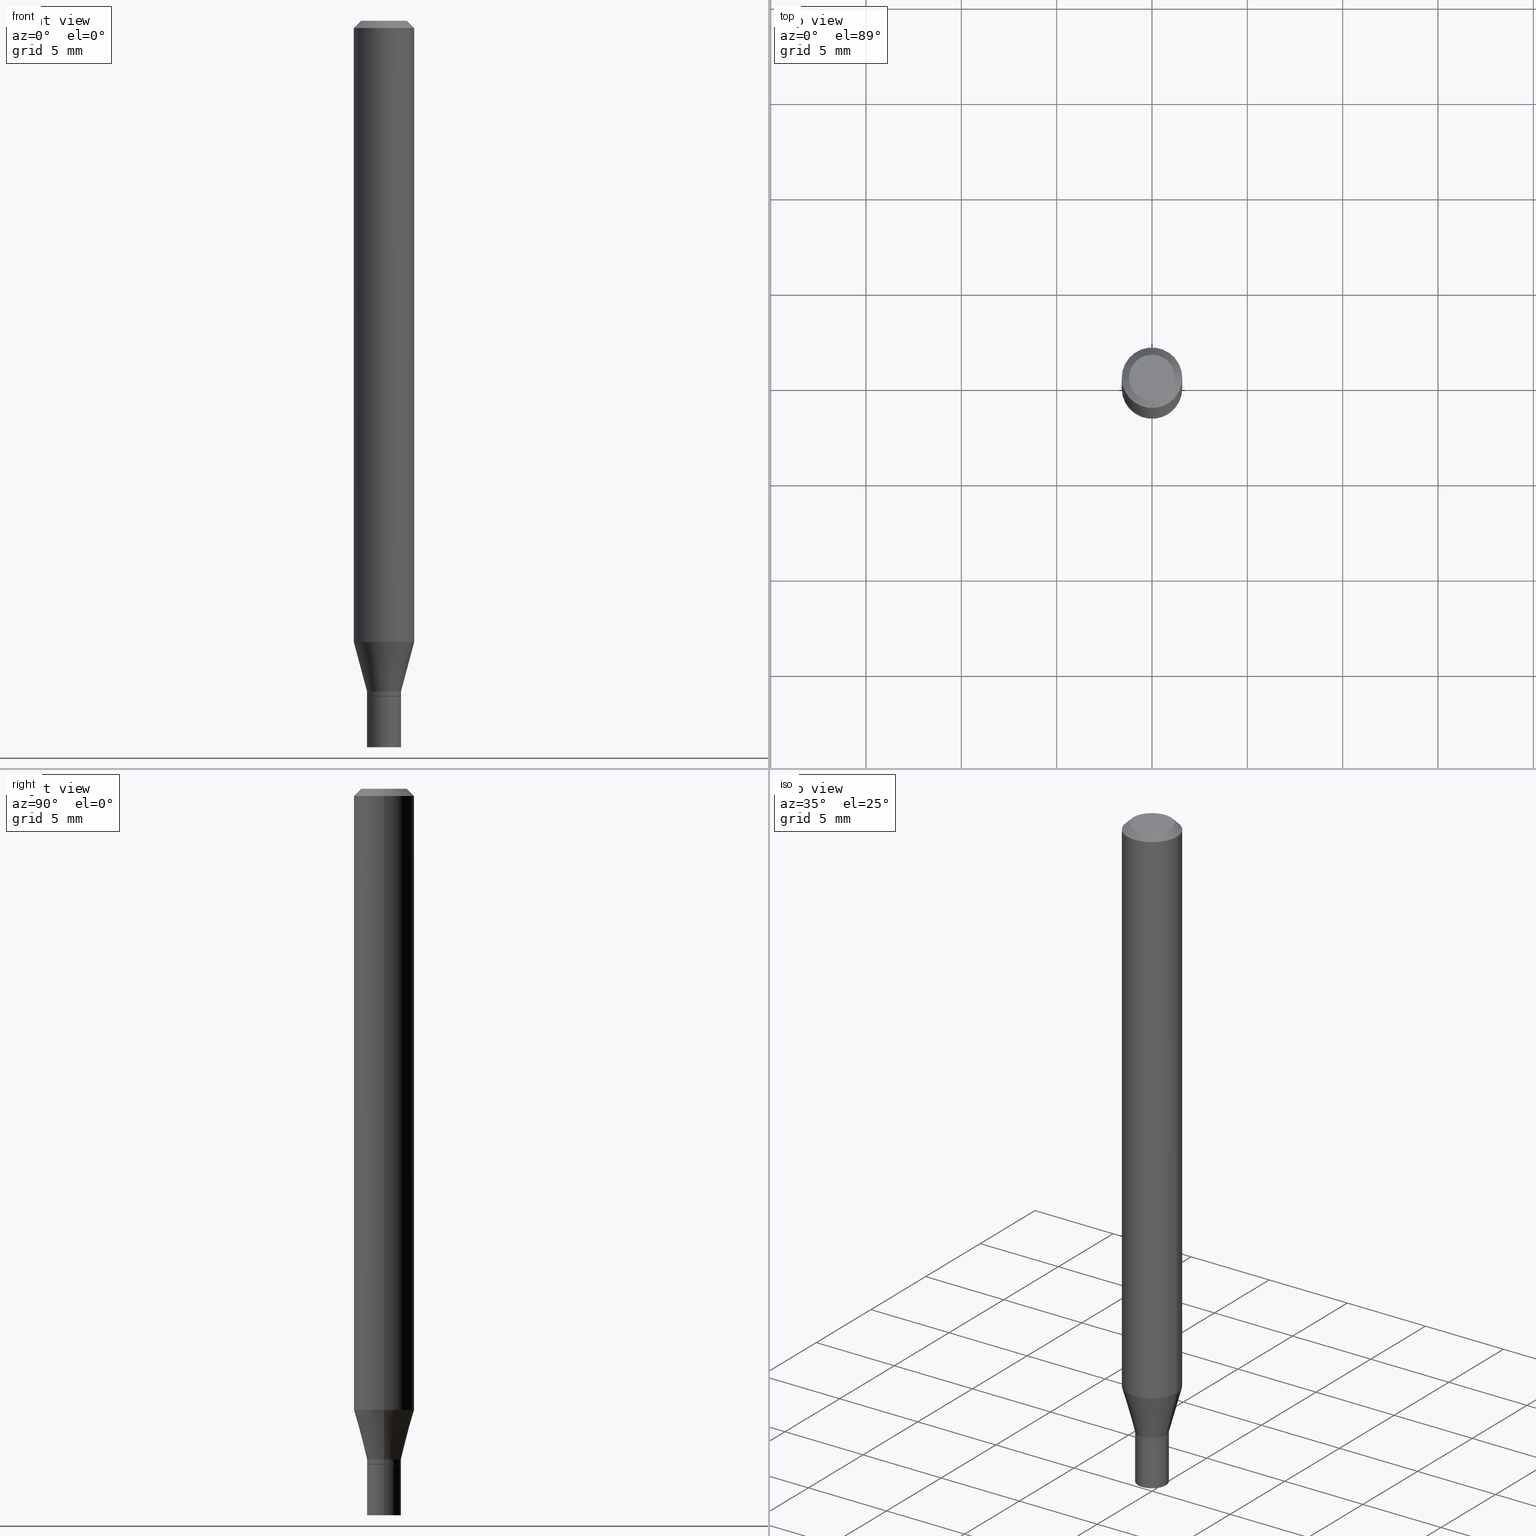
[diagram: canonical four-view strip — front | top / right | iso, engineering-drawing reading convention]
A machine part, canonical four-view strip (front | top / right | iso — engineering-drawing reading convention). The complete STEP part file that produces these views, byte-faithful:
ISO-10303-21;
HEADER;
FILE_DESCRIPTION (( 'STEP AP203' ),
    '1' );
FILE_NAME ('01143.STEP',
    '2024-03-19T23:19:51',
    ( '' ),
    ( '' ),
    'SwSTEP 2.0',
    'SolidWorks 2023',
    '' );
FILE_SCHEMA (( 'CONFIG_CONTROL_DESIGN' ));
ENDSEC;

DATA;
#1 = ORIENTED_EDGE ( 'NONE', *, *, #266, .T. ) ;
#2 = DIRECTION ( 'NONE',  ( 0.2588190451025205729, 1.565188264969627490E-15, 0.9659258262890682012 ) ) ;
#3 = AXIS2_PLACEMENT_3D ( 'NONE', #323, #396, #434 ) ;
#4 = CIRCLE ( 'NONE', #101, 0.03499999999999992700 ) ;
#5 = CARTESIAN_POINT ( 'NONE',  ( 0.06250000000000000000, -4.888073874380388472E-16, -0.01499999999999999944 ) ) ;
#6 = LINE ( 'NONE', #365, #210 ) ;
#7 = VERTEX_POINT ( 'NONE', #95 ) ;
#8 = EDGE_CURVE ( 'NONE', #317, #40, #327, .T. ) ;
#9 = CARTESIAN_POINT ( 'NONE',  ( 0.000000000000000000, 0.000000000000000000, 0.000000000000000000 ) ) ;
#10 = AXIS2_PLACEMENT_3D ( 'NONE', #338, #197, #341 ) ;
#11 = ORIENTED_EDGE ( 'NONE', *, *, #26, .F. ) ;
#12 = LOCAL_TIME ( 19, 19, 51.00000000000000000, #384 ) ;
#13 = CARTESIAN_POINT ( 'NONE',  ( 3.386974296566414366E-29, -4.835701654297756579E-15, -1.385000000000000009 ) ) ;
#14 = CARTESIAN_POINT ( 'NONE',  ( 0.000000000000000000, 0.000000000000000000, 0.000000000000000000 ) ) ;
#15 = DIRECTION ( 'NONE',  ( 2.445468806185136597E-29, -3.491481338843145583E-15, -1.000000000000000000 ) ) ;
#16 = ADVANCED_FACE ( 'NONE', ( #372 ), #31, .T. ) ;
#17 = DIRECTION ( 'NONE',  ( 2.438088387897960049E-29, -3.491481338843145188E-15, -1.000000000000000000 ) ) ;
#18 = ORIENTED_EDGE ( 'NONE', *, *, #143, .T. ) ;
#19 = AXIS2_PLACEMENT_3D ( 'NONE', #263, #376, #233 ) ;
#20 = APPROVAL_PERSON_ORGANIZATION ( #33, #421, #452 ) ;
#21 = DIRECTION ( 'NONE',  ( 0.7071067811865416886, -7.319954787623233957E-15, -0.7071067811865531239 ) ) ;
#22 = DIRECTION ( 'NONE',  ( 1.000000000000000000, -6.982962677686267499E-15, 4.852736867747366768E-29 ) ) ;
#23 = CLOSED_SHELL ( 'NONE', ( #123, #253, #280, #62 ) ) ;
#24 = ORIENTED_EDGE ( 'NONE', *, *, #43, .F. ) ;
#25 = COORDINATED_UNIVERSAL_TIME_OFFSET ( 5, 0, .BEHIND. ) ;
#26 = EDGE_CURVE ( 'NONE', #150, #185, #219, .T. ) ;
#27 = CYLINDRICAL_SURFACE ( 'NONE', #39, 0.03500000000000000333 ) ;
#28 = ORIENTED_EDGE ( 'NONE', *, *, #232, .F. ) ;
#29 = PERSON_AND_ORGANIZATION ( #178, #428 ) ;
#30 = CARTESIAN_POINT ( 'NONE',  ( 0.000000000000000000, 0.000000000000000000, 0.000000000000000000 ) ) ;
#31 = CONICAL_SURFACE ( 'NONE', #10, 0.03499999999999992700, 0.2617993877991492968 ) ;
#32 = ORIENTED_EDGE ( 'NONE', *, *, #437, .F. ) ;
#33 = PERSON_AND_ORGANIZATION ( #178, #428 ) ;
#34 = DIRECTION ( 'NONE',  ( -2.445468806185136597E-29, 3.491481338843145583E-15, 1.000000000000000000 ) ) ;
#35 = DIRECTION ( 'NONE',  ( -2.445468806185136597E-29, 3.491481338843145583E-15, 1.000000000000000000 ) ) ;
#36 = ORIENTED_EDGE ( 'NONE', *, *, #222, .F. ) ;
#37 = APPLICATION_CONTEXT ( 'configuration controlled 3d designs of mechanical parts and assemblies' ) ;
#38 = CARTESIAN_POINT ( 'NONE',  ( -0.03499999999999992700, -4.310144266548890801E-15, -1.385000000000000009 ) ) ;
#39 = AXIS2_PLACEMENT_3D ( 'NONE', #419, #389, #422 ) ;
#40 = VERTEX_POINT ( 'NONE', #60 ) ;
#41 = ORIENTED_EDGE ( 'NONE', *, *, #232, .T. ) ;
#42 = DIRECTION ( 'NONE',  ( -0.2588190451025205729, 5.211531920934544731E-15, 0.9659258262890682012 ) ) ;
#43 = EDGE_CURVE ( 'NONE', #111, #106, #225, .T. ) ;
#44 = FACE_OUTER_BOUND ( 'NONE', #243, .T. ) ;
#45 = FACE_OUTER_BOUND ( 'NONE', #177, .T. ) ;
#46 = ORIENTED_EDGE ( 'NONE', *, *, #84, .F. ) ;
#47 = LINE ( 'NONE', #370, #58 ) ;
#48 = DIRECTION ( 'NONE',  ( -2.445468806185136597E-29, 3.491481338843145583E-15, 1.000000000000000000 ) ) ;
#49 = AXIS2_PLACEMENT_3D ( 'NONE', #196, #340, #128 ) ;
#50 = SECURITY_CLASSIFICATION ( '', '', #90 ) ;
#51 = LINE ( 'NONE', #438, #417 ) ;
#52 = EDGE_CURVE ( 'NONE', #185, #150, #195, .T. ) ;
#53 = PLANE ( 'NONE',  #313 ) ;
#54 = ADVANCED_BREP_SHAPE_REPRESENTATION ( '01143', ( #83, #231, #335 ), #450 ) ;
#55 = COORDINATED_UNIVERSAL_TIME_OFFSET ( 5, 0, .BEHIND. ) ;
#56 = COORDINATED_UNIVERSAL_TIME_OFFSET ( 5, 0, .BEHIND. ) ;
#57 = AXIS2_PLACEMENT_3D ( 'NONE', #444, #122, #264 ) ;
#58 = VECTOR ( 'NONE', #21, 39.37007874015748854 ) ;
#59 = LINE ( 'NONE', #349, #242 ) ;
#60 = CARTESIAN_POINT ( 'NONE',  ( 0.03499999999999992700, -5.080105348016775756E-15, -1.385000000000000009 ) ) ;
#61 = APPROVAL_STATUS ( 'not_yet_approved' ) ;
#62 = ADVANCED_FACE ( 'NONE', ( #107 ), #176, .F. ) ;
#63 = CALENDAR_DATE ( 2024, 19, 3 ) ;
#64 = DIRECTION ( 'NONE',  ( -2.445468806185136597E-29, 3.491481338843145583E-15, 1.000000000000000000 ) ) ;
#65 = VERTEX_POINT ( 'NONE', #105 ) ;
#66 = LINE ( 'NONE', #352, #91 ) ;
#67 = ORIENTED_EDGE ( 'NONE', *, *, #168, .F. ) ;
#68 = CALENDAR_DATE ( 2024, 19, 3 ) ;
#69 = AXIS2_PLACEMENT_3D ( 'NONE', #308, #456, #321 ) ;
#70 = CIRCLE ( 'NONE', #79, 0.03500000000000000333 ) ;
#71 = DIRECTION ( 'NONE',  ( -2.445468806185136877E-29, 3.491481338843145188E-15, 1.000000000000000000 ) ) ;
#72 = ORIENTED_EDGE ( 'NONE', *, *, #26, .T. ) ;
#73 = CARTESIAN_POINT ( 'NONE',  ( 0.03500000000000000333, -5.481625701983738143E-15, -1.500000000000000222 ) ) ;
#74 = CARTESIAN_POINT ( 'NONE',  ( 3.411428984628265351E-29, -4.870616467686188228E-15, -1.395000000000000018 ) ) ;
#75 = CARTESIAN_POINT ( 'NONE',  ( -0.03500000000000000333, 2.486899575160350887E-16, -1.721627281589217108E-30 ) ) ;
#76 = ORIENTED_EDGE ( 'NONE', *, *, #407, .F. ) ;
#77 = DIRECTION ( 'NONE',  ( -2.445468806185136597E-29, 3.491481338843145583E-15, 1.000000000000000000 ) ) ;
#78 = CC_DESIGN_DATE_AND_TIME_ASSIGNMENT ( #307, #127, ( #287 ) ) ;
#79 = AXIS2_PLACEMENT_3D ( 'NONE', #186, #224, #152 ) ;
#80 = CARTESIAN_POINT ( 'NONE',  ( 0.03450000000000000289, -5.111528680066364398E-15, -1.395000000000000018 ) ) ;
#81 = CARTESIAN_POINT ( 'NONE',  ( -0.03500000000000000333, -4.805229280459417916E-15, -1.500000000000000222 ) ) ;
#82 = LINE ( 'NONE', #364, #141 ) ;
#83 = MANIFOLD_SOLID_BREP ( 'Body-Move/Copy2[1]', #23 ) ;
#84 = EDGE_CURVE ( 'NONE', #144, #317, #465, .T. ) ;
#85 = EDGE_LOOP ( 'NONE', ( #72, #140, #76, #162 ) ) ;
#86 = CIRCLE ( 'NONE', #362, 0.03499999999999992700 ) ;
#87 = CARTESIAN_POINT ( 'NONE',  ( -6.039856226162565090E-45, 8.623313963198306787E-31, 2.469815280770059421E-16 ) ) ;
#88 = ORIENTED_EDGE ( 'NONE', *, *, #270, .F. ) ;
#89 = CALENDAR_DATE ( 2024, 19, 3 ) ;
#90 = SECURITY_CLASSIFICATION_LEVEL ( 'unclassified' ) ;
#91 = VECTOR ( 'NONE', #2, 39.37007874015748854 ) ;
#92 = DIRECTION ( 'NONE',  ( -2.445468806185136597E-29, 3.491481338843145583E-15, 1.000000000000000000 ) ) ;
#93 = DIRECTION ( 'NONE',  ( -2.445468806185136597E-29, 3.491481338843145583E-15, 1.000000000000000000 ) ) ;
#94 = AXIS2_PLACEMENT_3D ( 'NONE', #87, #446, #22 ) ;
#95 = CARTESIAN_POINT ( 'NONE',  ( 0.03450000000000000289, -5.111528680066364398E-15, -1.395000000000000018 ) ) ;
#96 = UNCERTAINTY_MEASURE_WITH_UNIT (LENGTH_MEASURE( 1.000000000000000082E-05 ), #420, 'distance_accuracy_value', 'NONE');
#97 = LENGTH_MEASURE_WITH_UNIT ( LENGTH_MEASURE( 0.02539999999999999897 ), #299 );
#98 = EDGE_CURVE ( 'NONE', #185, #454, #139, .T. ) ;
#99 = ADVANCED_FACE ( 'NONE', ( #211 ), #281, .T. ) ;
#100 = CIRCLE ( 'NONE', #228, 0.03499999999999992700 ) ;
#101 = AXIS2_PLACEMENT_3D ( 'NONE', #325, #392, #115 ) ;
#102 = DIRECTION ( 'NONE',  ( 1.000000000000000000, -6.982962677686266711E-15, 4.876176775795935793E-29 ) ) ;
#103 =( NAMED_UNIT ( * ) SI_UNIT ( $, .STERADIAN. ) SOLID_ANGLE_UNIT ( ) );
#104 = ORIENTED_EDGE ( 'NONE', *, *, #415, .F. ) ;
#105 = CARTESIAN_POINT ( 'NONE',  ( 0.03500000000000000333, -5.115020161405208194E-15, -1.395000000000000018 ) ) ;
#106 = VERTEX_POINT ( 'NONE', #205 ) ;
#107 = FACE_OUTER_BOUND ( 'NONE', #283, .T. ) ;
#108 = ORIENTED_EDGE ( 'NONE', *, *, #371, .F. ) ;
#109 = AXIS2_PLACEMENT_3D ( 'NONE', #14, #286, #326 ) ;
#110 = FACE_OUTER_BOUND ( 'NONE', #390, .T. ) ;
#111 = VERTEX_POINT ( 'NONE', #427 ) ;
#112 = ORIENTED_EDGE ( 'NONE', *, *, #143, .F. ) ;
#113 = PLANE ( 'NONE',  #440 ) ;
#114 = APPROVAL ( #61, 'UNSPECIFIED' ) ;
#115 = DIRECTION ( 'NONE',  ( 1.000000000000000000, -6.982962677686264344E-15, 0.000000000000000000 ) ) ;
#116 = DIRECTION ( 'NONE',  ( -2.445468806185136597E-29, 3.491481338843145583E-15, 1.000000000000000000 ) ) ;
#117 = CARTESIAN_POINT ( 'NONE',  ( -0.06250000000000000000, 4.440892098500626162E-16, -3.074334431409316114E-30 ) ) ;
#118 = ADVANCED_FACE ( 'NONE', ( #271 ), #113, .F. ) ;
#119 = DIRECTION ( 'NONE',  ( -0.7071067811865656694, 7.493145998870420424E-15, 0.7071067811865294761 ) ) ;
#120 = CC_DESIGN_PERSON_AND_ORGANIZATION_ASSIGNMENT ( #29, #138, ( #287 ) ) ;
#121 = VERTEX_POINT ( 'NONE', #248 ) ;
#122 = DIRECTION ( 'NONE',  ( -2.445468806185136597E-29, 3.491481338843145583E-15, 1.000000000000000000 ) ) ;
#123 = ADVANCED_FACE ( 'NONE', ( #393 ), #27, .T. ) ;
#124 = COORDINATED_UNIVERSAL_TIME_OFFSET ( 5, 0, .BEHIND. ) ;
#125 = ADVANCED_FACE ( 'NONE', ( #110 ), #350, .T. ) ;
#126 = APPROVAL_DATE_TIME ( #443, #463 ) ;
#127 = DATE_TIME_ROLE ( 'creation_date' ) ;
#128 = DIRECTION ( 'NONE',  ( 1.000000000000000000, -6.982962677686276966E-15, 0.000000000000000000 ) ) ;
#129 = DIRECTION ( 'NONE',  ( -2.445468806185136877E-29, 3.491481338843145188E-15, 1.000000000000000000 ) ) ;
#130 = LOCAL_TIME ( 19, 19, 51.00000000000000000, #55 ) ;
#131 = CYLINDRICAL_SURFACE ( 'NONE', #385, 0.06250000000000000000 ) ;
#132 = ORIENTED_EDGE ( 'NONE', *, *, #84, .T. ) ;
#133 = APPLICATION_PROTOCOL_DEFINITION ( 'international standard', 'config_control_design', 1994, #37 ) ;
#134 = DIRECTION ( 'NONE',  ( 1.000000000000000000, -6.982962677686265922E-15, 4.876176775795935793E-29 ) ) ;
#135 = CC_DESIGN_DATE_AND_TIME_ASSIGNMENT ( #159, #227, ( #50 ) ) ;
#136 = CARTESIAN_POINT ( 'NONE',  ( 3.411428984628265351E-29, -4.870616467686188228E-15, -1.395000000000000018 ) ) ;
#137 = ORIENTED_EDGE ( 'NONE', *, *, #52, .F. ) ;
#138 = PERSON_AND_ORGANIZATION_ROLE ( 'creator' ) ;
#139 = LINE ( 'NONE', #75, #265 ) ;
#140 = ORIENTED_EDGE ( 'NONE', *, *, #98, .T. ) ;
#141 = VECTOR ( 'NONE', #402, 39.37007874015748854 ) ;
#142 = CARTESIAN_POINT ( 'NONE',  ( 3.668203209277705088E-31, -5.237222008264718399E-17, -0.01499999999999999944 ) ) ;
#143 = EDGE_CURVE ( 'NONE', #290, #355, #312, .T. ) ;
#144 = VERTEX_POINT ( 'NONE', #311 ) ;
#145 = CYLINDRICAL_SURFACE ( 'NONE', #344, 0.03499999999999992700 ) ;
#146 = ORIENTED_EDGE ( 'NONE', *, *, #8, .F. ) ;
#147 = APPLICATION_CONTEXT ( 'configuration controlled 3d designs of mechanical parts and assemblies' ) ;
#148 = DIRECTION ( 'NONE',  ( -2.445468806185136597E-29, 3.491481338843145583E-15, 1.000000000000000000 ) ) ;
#149 = DIRECTION ( 'NONE',  ( 1.000000000000000000, -6.982962677686262766E-15, 0.000000000000000000 ) ) ;
#150 = VERTEX_POINT ( 'NONE', #73 ) ;
#151 = ORIENTED_EDGE ( 'NONE', *, *, #213, .F. ) ;
#152 = DIRECTION ( 'NONE',  ( 1.000000000000000000, -6.982962677686276966E-15, 0.000000000000000000 ) ) ;
#153 = FACE_OUTER_BOUND ( 'NONE', #336, .T. ) ;
#154 = DIRECTION ( 'NONE',  ( -2.445468806185136597E-29, 3.491481338843145583E-15, 1.000000000000000000 ) ) ;
#155 = ADVANCED_FACE ( 'NONE', ( #431 ), #191, .T. ) ;
#156 = EDGE_LOOP ( 'NONE', ( #108, #199, #346, #24 ) ) ;
#157 = DIRECTION ( 'NONE',  ( -1.000000000000000000, 6.982962677686265922E-15, -4.876176775795935793E-29 ) ) ;
#158 = CIRCLE ( 'NONE', #354, 0.04749999999999999362 ) ;
#159 = DATE_AND_TIME ( #453, #130 ) ;
#160 = CONICAL_SURFACE ( 'NONE', #387, 0.03499999999999992700, 0.2617993877991492968 ) ;
#161 = EDGE_CURVE ( 'NONE', #7, #306, #334, .T. ) ;
#162 = ORIENTED_EDGE ( 'NONE', *, *, #400, .F. ) ;
#163 = ORIENTED_EDGE ( 'NONE', *, *, #161, .F. ) ;
#164 = DATE_AND_TIME ( #68, #12 ) ;
#165 = DIRECTION ( 'NONE',  ( 1.000000000000000000, -6.982962677686261977E-15, 0.000000000000000000 ) ) ;
#166 = EDGE_LOOP ( 'NONE', ( #279, #388, #426, #246 ) ) ;
#167 = DIRECTION ( 'NONE',  ( 1.000000000000000000, -6.982962677686265922E-15, 4.876176775795935793E-29 ) ) ;
#168 = EDGE_CURVE ( 'NONE', #355, #290, #297, .T. ) ;
#169 = CC_DESIGN_PERSON_AND_ORGANIZATION_ASSIGNMENT ( #309, #378, ( #374 ) ) ;
#170 = CIRCLE ( 'NONE', #282, 0.06250000000000000000 ) ;
#171 = PLANE ( 'NONE',  #301 ) ;
#172 = LOCAL_TIME ( 19, 19, 51.00000000000000000, #124 ) ;
#173 = DIRECTION ( 'NONE',  ( -2.445468806185136877E-29, 3.491481338843145188E-15, 1.000000000000000000 ) ) ;
#174 = ORIENTED_EDGE ( 'NONE', *, *, #397, .T. ) ;
#175 = DIRECTION ( 'NONE',  ( 0.000000000000000000, 0.000000000000000000, 1.000000000000000000 ) ) ;
#176 = PLANE ( 'NONE',  #460 ) ;
#177 = EDGE_LOOP ( 'NONE', ( #32, #430, #18, #188 ) ) ;
#178 = PERSON ( 'UNSPECIFIED', 'UNSPECIFIED', 'UNSPECIFIED', ('UNSPECIFIED'), ('UNSPECIFIED'), ('UNSPECIFIED') ) ;
#179 = ADVANCED_FACE ( 'NONE', ( #461 ), #131, .T. ) ;
#180 = DIRECTION ( 'NONE',  ( -2.445468806185136597E-29, 3.491481338843145583E-15, 1.000000000000000000 ) ) ;
#181 = DIRECTION ( 'NONE',  ( -2.445468806185136877E-29, 3.491481338843145188E-15, 1.000000000000000000 ) ) ;
#182 = AXIS2_PLACEMENT_3D ( 'NONE', #316, #284, #381 ) ;
#183 = PRODUCT_RELATED_PRODUCT_CATEGORY ( 'detail', '', ( #447 ) ) ;
#184 = DIRECTION ( 'NONE',  ( 0.7071067811865656694, -2.468850131082446387E-15, 0.7071067811865294761 ) ) ;
#185 = VERTEX_POINT ( 'NONE', #81 ) ;
#186 = CARTESIAN_POINT ( 'NONE',  ( 3.411428984628265351E-29, -4.870616467686188228E-15, -1.395000000000000018 ) ) ;
#187 = ORIENTED_EDGE ( 'NONE', *, *, #377, .F. ) ;
#188 = ORIENTED_EDGE ( 'NONE', *, *, #356, .F. ) ;
#189 = DIRECTION ( 'NONE',  ( -2.445468806185136877E-29, 3.491481338843145188E-15, 1.000000000000000000 ) ) ;
#190 = CARTESIAN_POINT ( 'NONE',  ( 3.410206250225173110E-29, -4.868870727016767513E-15, -1.394500000000000073 ) ) ;
#191 = CONICAL_SURFACE ( 'NONE', #410, 0.03450000000000000289, 0.7853981633974739252 ) ;
#192 = AXIS2_PLACEMENT_3D ( 'NONE', #342, #93, #230 ) ;
#193 = CARTESIAN_POINT ( 'NONE',  ( 3.316907271900976096E-16, 0.04749999999999999362, -4.235459955654642541E-17 ) ) ;
#194 = EDGE_CURVE ( 'NONE', #106, #111, #170, .T. ) ;
#195 = CIRCLE ( 'NONE', #49, 0.03500000000000000333 ) ;
#196 = CARTESIAN_POINT ( 'NONE',  ( 3.668203209277704895E-29, -5.237222008264718177E-15, -1.500000000000000222 ) ) ;
#197 = DIRECTION ( 'NONE',  ( -2.445468806185136597E-29, 3.491481338843145583E-15, 1.000000000000000000 ) ) ;
#198 = CONICAL_SURFACE ( 'NONE', #3, 0.06250000000000000000, 0.7853981633974401744 ) ;
#199 = ORIENTED_EDGE ( 'NONE', *, *, #8, .T. ) ;
#200 = ORIENTED_EDGE ( 'NONE', *, *, #407, .T. ) ;
#201 = PERSON_AND_ORGANIZATION ( #178, #428 ) ;
#202 = ADVANCED_FACE ( 'NONE', ( #45 ), #448, .T. ) ;
#203 = DIRECTION ( 'NONE',  ( 1.000000000000000000, -6.982962677686266711E-15, 0.000000000000000000 ) ) ;
#204 = CARTESIAN_POINT ( 'NONE',  ( 0.000000000000000000, 0.000000000000000000, 0.000000000000000000 ) ) ;
#205 = CARTESIAN_POINT ( 'NONE',  ( 0.06250000000000000000, -4.913801213521513807E-15, -1.282368602791855716 ) ) ;
#206 = AXIS2_PLACEMENT_3D ( 'NONE', #409, #92, #229 ) ;
#207 = ORIENTED_EDGE ( 'NONE', *, *, #98, .F. ) ;
#208 = APPROVAL_DATE_TIME ( #164, #114 ) ;
#209 = VECTOR ( 'NONE', #439, 39.37007874015748143 ) ;
#210 = VECTOR ( 'NONE', #189, 39.37007874015748143 ) ;
#211 = FACE_OUTER_BOUND ( 'NONE', #285, .T. ) ;
#212 = ORIENTED_EDGE ( 'NONE', *, *, #391, .F. ) ;
#213 = EDGE_CURVE ( 'NONE', #144, #348, #100, .T. ) ;
#214 = DIRECTION ( 'NONE',  ( -2.445468806185136597E-29, 3.491481338843145583E-15, 1.000000000000000000 ) ) ;
#215 = DIRECTION ( 'NONE',  ( 1.000000000000000000, -6.982962677686261977E-15, 0.000000000000000000 ) ) ;
#216 = DIRECTION ( 'NONE',  ( -2.438088387897960049E-29, 3.491481338843145188E-15, 1.000000000000000000 ) ) ;
#217 = ORIENTED_EDGE ( 'NONE', *, *, #324, .F. ) ;
#218 = CARTESIAN_POINT ( 'NONE',  ( -0.06250000000000000000, -1.820779923274322189E-15, -0.01499999999999999944 ) ) ;
#219 = CIRCLE ( 'NONE', #57, 0.03500000000000000333 ) ;
#220 = VECTOR ( 'NONE', #119, 39.37007874015748143 ) ;
#221 = CARTESIAN_POINT ( 'NONE',  ( -0.03499999999999992700, -4.587011696781722870E-15, -1.385000000000000009 ) ) ;
#222 = EDGE_CURVE ( 'NONE', #40, #317, #86, .T. ) ;
#223 = ORIENTED_EDGE ( 'NONE', *, *, #52, .T. ) ;
#224 = DIRECTION ( 'NONE',  ( -2.445468806185136597E-29, 3.491481338843145583E-15, 1.000000000000000000 ) ) ;
#225 = CIRCLE ( 'NONE', #206, 0.06250000000000000000 ) ;
#226 = CARTESIAN_POINT ( 'NONE',  ( -0.04749999999999999362, 3.578768372314215436E-16, 2.469815280770035755E-16 ) ) ;
#227 = DATE_TIME_ROLE ( 'classification_date' ) ;
#228 = AXIS2_PLACEMENT_3D ( 'NONE', #190, #328, #296 ) ;
#229 = DIRECTION ( 'NONE',  ( 1.000000000000000000, -6.982962677686262766E-15, 0.000000000000000000 ) ) ;
#230 = DIRECTION ( 'NONE',  ( 1.000000000000000000, -6.982962677686261977E-15, 0.000000000000000000 ) ) ;
#231 = MANIFOLD_SOLID_BREP ( 'Body-Move/Copy2[2]', #310 ) ;
#232 = EDGE_CURVE ( 'NONE', #106, #290, #59, .T. ) ;
#233 = DIRECTION ( 'NONE',  ( 1.000000000000000000, -6.982962677686264344E-15, 0.000000000000000000 ) ) ;
#234 = APPROVAL_ROLE ( '' ) ;
#235 = APPROVAL_DATE_TIME ( #380, #421 ) ;
#236 = CIRCLE ( 'NONE', #435, 0.03500000000000000333 ) ;
#237 = EDGE_CURVE ( 'NONE', #40, #106, #66, .T. ) ;
#238 = ORIENTED_EDGE ( 'NONE', *, *, #451, .F. ) ;
#239 = DIRECTION ( 'NONE',  ( 1.000000000000000000, -6.982962677686266711E-15, 4.876176775795935793E-29 ) ) ;
#240 = ORIENTED_EDGE ( 'NONE', *, *, #451, .T. ) ;
#241 = APPLICATION_PROTOCOL_DEFINITION ( 'international standard', 'config_control_design', 1994, #147 ) ;
#242 = VECTOR ( 'NONE', #129, 39.37007874015748143 ) ;
#243 = EDGE_LOOP ( 'NONE', ( #331, #132, #36, #88 ) ) ;
#244 = CC_DESIGN_SECURITY_CLASSIFICATION ( #50, ( #374 ) ) ;
#245 = DIRECTION ( 'NONE',  ( -1.000000000000000000, 6.982962677686265922E-15, -4.876176775795935793E-29 ) ) ;
#246 = ORIENTED_EDGE ( 'NONE', *, *, #237, .F. ) ;
#247 = CARTESIAN_POINT ( 'NONE',  ( 3.411428984628265351E-29, -4.870616467686188228E-15, -1.395000000000000018 ) ) ;
#248 = CARTESIAN_POINT ( 'NONE',  ( 0.04749999999999999362, -4.035134999187574186E-16, 2.469815280770085059E-16 ) ) ;
#249 = ORIENTED_EDGE ( 'NONE', *, *, #213, .T. ) ;
#250 = CARTESIAN_POINT ( 'NONE',  ( -0.03450000000000000289, -4.622829996674842639E-15, -1.395000000000000018 ) ) ;
#251 = EDGE_LOOP ( 'NONE', ( #1, #466 ) ) ;
#252 = CARTESIAN_POINT ( 'NONE',  ( 0.03499999999999992700, -5.113274420735785901E-15, -1.394500000000000073 ) ) ;
#253 = ADVANCED_FACE ( 'NONE', ( #320 ), #171, .F. ) ;
#254 = DIMENSIONAL_EXPONENTS ( 1.000000000000000000, 0.000000000000000000, 0.000000000000000000, 0.000000000000000000, 0.000000000000000000, 0.000000000000000000, 0.000000000000000000 ) ;
#255 = CIRCLE ( 'NONE', #363, 0.03450000000000000289 ) ;
#256 = CC_DESIGN_PERSON_AND_ORGANIZATION_ASSIGNMENT ( #201, #458, ( #374 ) ) ;
#257 = ORIENTED_EDGE ( 'NONE', *, *, #360, .F. ) ;
#258 = DIRECTION ( 'NONE',  ( 1.000000000000000000, -6.982962677686264344E-15, 0.000000000000000000 ) ) ;
#259 = PRODUCT_DEFINITION_SHAPE ( 'NONE', 'NONE',  #287 ) ;
#260 = FACE_OUTER_BOUND ( 'NONE', #423, .T. ) ;
#261 = APPROVAL_PERSON_ORGANIZATION ( #277, #114, #274 ) ;
#262 = LINE ( 'NONE', #414, #220 ) ;
#263 = CARTESIAN_POINT ( 'NONE',  ( 3.386974296566414366E-29, -4.835701654297756579E-15, -1.385000000000000009 ) ) ;
#264 = DIRECTION ( 'NONE',  ( 1.000000000000000000, -6.982962677686276966E-15, 0.000000000000000000 ) ) ;
#265 = VECTOR ( 'NONE', #71, 39.37007874015748143 ) ;
#266 = EDGE_CURVE ( 'NONE', #457, #121, #158, .T. ) ;
#267 = CIRCLE ( 'NONE', #94, 0.04749999999999999362 ) ;
#268 = CALENDAR_DATE ( 2024, 19, 3 ) ;
#269 = APPROVAL_STATUS ( 'not_yet_approved' ) ;
#270 = EDGE_CURVE ( 'NONE', #348, #40, #51, .T. ) ;
#271 = FACE_OUTER_BOUND ( 'NONE', #318, .T. ) ;
#272 = AXIS2_PLACEMENT_3D ( 'NONE', #289, #15, #403 ) ;
#273 = CC_DESIGN_APPROVAL ( #421, ( #374 ) ) ;
#274 = APPROVAL_ROLE ( '' ) ;
#275 = DIRECTION ( 'NONE',  ( 2.438088387897960049E-29, -3.491481338843145188E-15, -1.000000000000000000 ) ) ;
#276 = ORIENTED_EDGE ( 'NONE', *, *, #161, .T. ) ;
#277 = PERSON_AND_ORGANIZATION ( #178, #428 ) ;
#278 = CARTESIAN_POINT ( 'NONE',  ( -6.039856226162565090E-45, 8.623313963198306787E-31, 2.469815280770059421E-16 ) ) ;
#279 = ORIENTED_EDGE ( 'NONE', *, *, #222, .T. ) ;
#280 = ADVANCED_FACE ( 'NONE', ( #153 ), #398, .T. ) ;
#281 = CYLINDRICAL_SURFACE ( 'NONE', #322, 0.03499999999999992700 ) ;
#282 = AXIS2_PLACEMENT_3D ( 'NONE', #399, #48, #149 ) ;
#283 = EDGE_LOOP ( 'NONE', ( #200, #462 ) ) ;
#284 = DIRECTION ( 'NONE',  ( -2.445468806185136597E-29, 3.491481338843145583E-15, 1.000000000000000000 ) ) ;
#285 = EDGE_LOOP ( 'NONE', ( #46, #249, #449, #146 ) ) ;
#286 = DIRECTION ( 'NONE',  ( -2.445468806185136597E-29, 3.491481338843145583E-15, 1.000000000000000000 ) ) ;
#287 = PRODUCT_DEFINITION ( 'UNKNOWN', '', #374, #411 ) ;
#288 = DIRECTION ( 'NONE',  ( 1.000000000000000000, -6.982962677686276966E-15, 0.000000000000000000 ) ) ;
#289 = CARTESIAN_POINT ( 'NONE',  ( 3.668203209277705088E-31, -5.237222008264718399E-17, -0.01499999999999999944 ) ) ;
#290 = VERTEX_POINT ( 'NONE', #5 ) ;
#291 = FACE_OUTER_BOUND ( 'NONE', #156, .T. ) ;
#292 = AXIS2_PLACEMENT_3D ( 'NONE', #30, #180, #239 ) ;
#293 = ORIENTED_EDGE ( 'NONE', *, *, #324, .T. ) ;
#294 = LINE ( 'NONE', #117, #209 ) ;
#295 = DIRECTION ( 'NONE',  ( 1.000000000000000000, -6.982962677686264344E-15, 0.000000000000000000 ) ) ;
#296 = DIRECTION ( 'NONE',  ( 1.000000000000000000, -6.982962677686264344E-15, 0.000000000000000000 ) ) ;
#297 = CIRCLE ( 'NONE', #373, 0.06250000000000000000 ) ;
#298 = VECTOR ( 'NONE', #42, 39.37007874015748854 ) ;
#299 =( LENGTH_UNIT ( ) NAMED_UNIT ( * ) SI_UNIT ( $, .METRE. ) );
#300 = CC_DESIGN_PERSON_AND_ORGANIZATION_ASSIGNMENT ( #304, #303, ( #50 ) ) ;
#301 = AXIS2_PLACEMENT_3D ( 'NONE', #315, #464, #134 ) ;
#302 = CONICAL_SURFACE ( 'NONE', #192, 0.03450000000000000289, 0.7853981633974739252 ) ;
#303 = PERSON_AND_ORGANIZATION_ROLE ( 'classification_officer' ) ;
#304 = PERSON_AND_ORGANIZATION ( #178, #428 ) ;
#305 = CC_DESIGN_PERSON_AND_ORGANIZATION_ASSIGNMENT ( #351, #314, ( #447 ) ) ;
#306 = VERTEX_POINT ( 'NONE', #250 ) ;
#307 = DATE_AND_TIME ( #63, #345 ) ;
#308 = CARTESIAN_POINT ( 'NONE',  ( 3.411428984628265351E-29, -4.870616467686188228E-15, -1.395000000000000018 ) ) ;
#309 = PERSON_AND_ORGANIZATION ( #178, #428 ) ;
#310 = CLOSED_SHELL ( 'NONE', ( #337, #155, #202, #179, #16, #413, #125, #343, #459, #118, #429, #99 ) ) ;
#311 = CARTESIAN_POINT ( 'NONE',  ( -0.03499999999999992700, -4.620180769500733016E-15, -1.394500000000000073 ) ) ;
#312 = CIRCLE ( 'NONE', #182, 0.06250000000000000000 ) ;
#313 = AXIS2_PLACEMENT_3D ( 'NONE', #193, #17, #157 ) ;
#314 = PERSON_AND_ORGANIZATION_ROLE ( 'design_owner' ) ;
#315 = CARTESIAN_POINT ( 'NONE',  ( 3.584916967085606921E-29, -5.356492647442320375E-15, -1.500000000000000222 ) ) ;
#316 = CARTESIAN_POINT ( 'NONE',  ( 3.668203209277705088E-31, -5.237222008264718399E-17, -0.01499999999999999944 ) ) ;
#317 = VERTEX_POINT ( 'NONE', #38 ) ;
#318 = EDGE_LOOP ( 'NONE', ( #163, #406 ) ) ;
#319 = ORIENTED_EDGE ( 'NONE', *, *, #168, .T. ) ;
#320 = FACE_OUTER_BOUND ( 'NONE', #442, .T. ) ;
#321 = DIRECTION ( 'NONE',  ( 1.000000000000000000, -6.982962677686261977E-15, 0.000000000000000000 ) ) ;
#322 = AXIS2_PLACEMENT_3D ( 'NONE', #357, #35, #102 ) ;
#323 = CARTESIAN_POINT ( 'NONE',  ( 3.668203209277705088E-31, -5.237222008264718399E-17, -0.01499999999999999944 ) ) ;
#324 = EDGE_CURVE ( 'NONE', #111, #355, #294, .T. ) ;
#325 = CARTESIAN_POINT ( 'NONE',  ( 3.410206250225173110E-29, -4.868870727016767513E-15, -1.394500000000000073 ) ) ;
#326 = DIRECTION ( 'NONE',  ( 1.000000000000000000, -6.982962677686265922E-15, 4.876176775795936353E-29 ) ) ;
#327 = CIRCLE ( 'NONE', #19, 0.03499999999999992700 ) ;
#328 = DIRECTION ( 'NONE',  ( -2.445468806185136597E-29, 3.491481338843145583E-15, 1.000000000000000000 ) ) ;
#329 = DIRECTION ( 'NONE',  ( -2.445468806185136597E-29, 3.491481338843145583E-15, 1.000000000000000000 ) ) ;
#330 = CARTESIAN_POINT ( 'NONE',  ( -0.03500000000000000333, -4.805229280459417916E-15, -1.395000000000000018 ) ) ;
#331 = ORIENTED_EDGE ( 'NONE', *, *, #391, .T. ) ;
#332 = ORIENTED_EDGE ( 'NONE', *, *, #43, .T. ) ;
#333 = EDGE_LOOP ( 'NONE', ( #358, #293, #112, #28 ) ) ;
#334 = CIRCLE ( 'NONE', #69, 0.03450000000000000289 ) ;
#335 = AXIS2_PLACEMENT_3D ( 'NONE', #204, #175, #347 ) ;
#336 = EDGE_LOOP ( 'NONE', ( #207, #223, #401, #187 ) ) ;
#337 = ADVANCED_FACE ( 'NONE', ( #44 ), #145, .T. ) ;
#338 = CARTESIAN_POINT ( 'NONE',  ( 3.386974296566414366E-29, -4.835701654297756579E-15, -1.385000000000000009 ) ) ;
#339 = FACE_OUTER_BOUND ( 'NONE', #361, .T. ) ;
#340 = DIRECTION ( 'NONE',  ( -2.445468806185136597E-29, 3.491481338843145583E-15, 1.000000000000000000 ) ) ;
#341 = DIRECTION ( 'NONE',  ( 1.000000000000000000, -6.982962677686264344E-15, 0.000000000000000000 ) ) ;
#342 = CARTESIAN_POINT ( 'NONE',  ( 3.411428984628265351E-29, -4.870616467686188228E-15, -1.395000000000000018 ) ) ;
#343 = ADVANCED_FACE ( 'NONE', ( #260 ), #198, .T. ) ;
#344 = AXIS2_PLACEMENT_3D ( 'NONE', #9, #77, #394 ) ;
#345 = LOCAL_TIME ( 19, 19, 51.00000000000000000, #25 ) ;
#346 = ORIENTED_EDGE ( 'NONE', *, *, #237, .T. ) ;
#347 = DIRECTION ( 'NONE',  ( 1.000000000000000000, 0.000000000000000000, 0.000000000000000000 ) ) ;
#348 = VERTEX_POINT ( 'NONE', #252 ) ;
#349 = CARTESIAN_POINT ( 'NONE',  ( 0.06250000000000000000, -4.364351673553916694E-16, 3.047610484872459871E-30 ) ) ;
#350 = CYLINDRICAL_SURFACE ( 'NONE', #292, 0.06250000000000000000 ) ;
#351 = PERSON_AND_ORGANIZATION ( #178, #428 ) ;
#352 = CARTESIAN_POINT ( 'NONE',  ( 0.03499999999999992700, -5.080105348016775756E-15, -1.385000000000000009 ) ) ;
#353 = CARTESIAN_POINT ( 'NONE',  ( 3.411428984628265351E-29, -4.870616467686188228E-15, -1.395000000000000018 ) ) ;
#354 = AXIS2_PLACEMENT_3D ( 'NONE', #278, #34, #424 ) ;
#355 = VERTEX_POINT ( 'NONE', #218 ) ;
#356 = EDGE_CURVE ( 'NONE', #457, #355, #82, .T. ) ;
#357 = CARTESIAN_POINT ( 'NONE',  ( 0.000000000000000000, 0.000000000000000000, 0.000000000000000000 ) ) ;
#358 = ORIENTED_EDGE ( 'NONE', *, *, #194, .T. ) ;
#359 = LINE ( 'NONE', #80, #379 ) ;
#360 = EDGE_CURVE ( 'NONE', #7, #348, #359, .T. ) ;
#361 = EDGE_LOOP ( 'NONE', ( #238, #174, #433, #151 ) ) ;
#362 = AXIS2_PLACEMENT_3D ( 'NONE', #13, #154, #295 ) ;
#363 = AXIS2_PLACEMENT_3D ( 'NONE', #74, #148, #215 ) ;
#364 = CARTESIAN_POINT ( 'NONE',  ( -0.06250000000000000000, 3.840629472727444916E-16, -0.01499999999999999944 ) ) ;
#365 = CARTESIAN_POINT ( 'NONE',  ( 0.03500000000000000333, -2.444036937190193250E-16, 1.706661871528577808E-30 ) ) ;
#366 = CARTESIAN_POINT ( 'NONE',  ( 3.386974296566414366E-29, -4.835701654297756579E-15, -1.385000000000000009 ) ) ;
#367 = LINE ( 'NONE', #221, #298 ) ;
#368 = DIRECTION ( 'NONE',  ( 1.000000000000000000, -6.982962677686266711E-15, 4.876176775795935793E-29 ) ) ;
#369 = FACE_OUTER_BOUND ( 'NONE', #251, .T. ) ;
#370 = CARTESIAN_POINT ( 'NONE',  ( 0.06250000000000000000, -4.811533449433679005E-16, -0.01499999999999999944 ) ) ;
#371 = EDGE_CURVE ( 'NONE', #317, #111, #367, .T. ) ;
#372 = FACE_OUTER_BOUND ( 'NONE', #166, .T. ) ;
#373 = AXIS2_PLACEMENT_3D ( 'NONE', #142, #64, #203 ) ;
#374 = PRODUCT_DEFINITION_FORMATION_WITH_SPECIFIED_SOURCE ( 'ANY', '', #447, .NOT_KNOWN. ) ;
#375 = SHAPE_DEFINITION_REPRESENTATION ( #259, #54 ) ;
#376 = DIRECTION ( 'NONE',  ( -2.445468806185136597E-29, 3.491481338843145583E-15, 1.000000000000000000 ) ) ;
#377 = EDGE_CURVE ( 'NONE', #454, #65, #236, .T. ) ;
#378 = PERSON_AND_ORGANIZATION_ROLE ( 'design_supplier' ) ;
#379 = VECTOR ( 'NONE', #184, 39.37007874015748143 ) ;
#380 = DATE_AND_TIME ( #268, #172 ) ;
#381 = DIRECTION ( 'NONE',  ( 1.000000000000000000, -6.982962677686266711E-15, 0.000000000000000000 ) ) ;
#382 = CARTESIAN_POINT ( 'NONE',  ( 0.000000000000000000, 0.000000000000000000, 0.000000000000000000 ) ) ;
#383 = EDGE_LOOP ( 'NONE', ( #276, #240, #212, #257 ) ) ;
#384 = COORDINATED_UNIVERSAL_TIME_OFFSET ( 5, 0, .BEHIND. ) ;
#385 = AXIS2_PLACEMENT_3D ( 'NONE', #382, #329, #368 ) ;
#386 = CARTESIAN_POINT ( 'NONE',  ( 2.444036937190534432E-16, 0.03499999999999513223, -1.395000000000000018 ) ) ;
#387 = AXIS2_PLACEMENT_3D ( 'NONE', #366, #116, #258 ) ;
#388 = ORIENTED_EDGE ( 'NONE', *, *, #371, .T. ) ;
#389 = DIRECTION ( 'NONE',  ( -2.445468806185136597E-29, 3.491481338843145583E-15, 1.000000000000000000 ) ) ;
#390 = EDGE_LOOP ( 'NONE', ( #217, #332, #41, #67 ) ) ;
#391 = EDGE_CURVE ( 'NONE', #348, #144, #4, .T. ) ;
#392 = DIRECTION ( 'NONE',  ( -2.445468806185136597E-29, 3.491481338843145583E-15, 1.000000000000000000 ) ) ;
#393 = FACE_OUTER_BOUND ( 'NONE', #85, .T. ) ;
#394 = DIRECTION ( 'NONE',  ( 1.000000000000000000, -6.982962677686266711E-15, 4.876176775795935793E-29 ) ) ;
#395 = LOCAL_TIME ( 19, 19, 51.00000000000000000, #56 ) ;
#396 = DIRECTION ( 'NONE',  ( 2.445468806185136597E-29, -3.491481338843145583E-15, -1.000000000000000000 ) ) ;
#397 = EDGE_CURVE ( 'NONE', #306, #7, #255, .T. ) ;
#398 = CYLINDRICAL_SURFACE ( 'NONE', #109, 0.03500000000000000333 ) ;
#399 = CARTESIAN_POINT ( 'NONE',  ( 3.135992416158700481E-29, -4.477366046166122137E-15, -1.282368602791855716 ) ) ;
#400 = EDGE_CURVE ( 'NONE', #150, #65, #6, .T. ) ;
#401 = ORIENTED_EDGE ( 'NONE', *, *, #400, .T. ) ;
#402 = DIRECTION ( 'NONE',  ( -0.7071067811865416886, 2.468850131082196713E-15, -0.7071067811865531239 ) ) ;
#403 = DIRECTION ( 'NONE',  ( -1.000000000000000000, 6.982962677686266711E-15, 0.000000000000000000 ) ) ;
#404 = ORIENTED_EDGE ( 'NONE', *, *, #266, .F. ) ;
#405 = VECTOR ( 'NONE', #173, 39.37007874015748143 ) ;
#406 = ORIENTED_EDGE ( 'NONE', *, *, #397, .F. ) ;
#407 = EDGE_CURVE ( 'NONE', #65, #454, #70, .T. ) ;
#408 = PERSON_AND_ORGANIZATION ( #178, #428 ) ;
#409 = CARTESIAN_POINT ( 'NONE',  ( 3.135992416158700481E-29, -4.477366046166122137E-15, -1.282368602791855716 ) ) ;
#410 = AXIS2_PLACEMENT_3D ( 'NONE', #136, #214, #165 ) ;
#411 = DESIGN_CONTEXT ( 'detailed design', #37, 'design' ) ;
#412 = APPROVAL_PERSON_ORGANIZATION ( #408, #463, #234 ) ;
#413 = ADVANCED_FACE ( 'NONE', ( #291 ), #160, .T. ) ;
#414 = CARTESIAN_POINT ( 'NONE',  ( -0.03450000000000000289, -4.625479223848953840E-15, -1.395000000000000018 ) ) ;
#415 = EDGE_CURVE ( 'NONE', #121, #290, #47, .T. ) ;
#416 =( NAMED_UNIT ( * ) PLANE_ANGLE_UNIT ( ) SI_UNIT ( $, .RADIAN. ) );
#417 = VECTOR ( 'NONE', #181, 39.37007874015748143 ) ;
#418 = CC_DESIGN_APPROVAL ( #114, ( #287 ) ) ;
#419 = CARTESIAN_POINT ( 'NONE',  ( 0.000000000000000000, 0.000000000000000000, 0.000000000000000000 ) ) ;
#420 =( CONVERSION_BASED_UNIT ( 'INCH', #97 ) LENGTH_UNIT ( ) NAMED_UNIT ( #254 ) );
#421 = APPROVAL ( #269, 'UNSPECIFIED' ) ;
#422 = DIRECTION ( 'NONE',  ( 1.000000000000000000, -6.982962677686265922E-15, 4.876176775795936353E-29 ) ) ;
#423 = EDGE_LOOP ( 'NONE', ( #104, #404, #432, #319 ) ) ;
#424 = DIRECTION ( 'NONE',  ( 1.000000000000000000, -6.982962677686267499E-15, 4.852736867747366768E-29 ) ) ;
#425 = CARTESIAN_POINT ( 'NONE',  ( -0.03499999999999992700, 2.486899575160345464E-16, -1.721627281589213254E-30 ) ) ;
#426 = ORIENTED_EDGE ( 'NONE', *, *, #194, .F. ) ;
#427 = CARTESIAN_POINT ( 'NONE',  ( -0.06250000000000000000, -4.033276836316059521E-15, -1.282368602791855716 ) ) ;
#428 = ORGANIZATION ( 'UNSPECIFIED', 'UNSPECIFIED', '' ) ;
#429 = ADVANCED_FACE ( 'NONE', ( #339 ), #302, .T. ) ;
#430 = ORIENTED_EDGE ( 'NONE', *, *, #415, .T. ) ;
#431 = FACE_OUTER_BOUND ( 'NONE', #383, .T. ) ;
#432 = ORIENTED_EDGE ( 'NONE', *, *, #356, .T. ) ;
#433 = ORIENTED_EDGE ( 'NONE', *, *, #360, .T. ) ;
#434 = DIRECTION ( 'NONE',  ( -1.000000000000000000, 6.982962677686266711E-15, 0.000000000000000000 ) ) ;
#435 = AXIS2_PLACEMENT_3D ( 'NONE', #247, #436, #288 ) ;
#436 = DIRECTION ( 'NONE',  ( -2.445468806185136597E-29, 3.491481338843145583E-15, 1.000000000000000000 ) ) ;
#437 = EDGE_CURVE ( 'NONE', #121, #457, #267, .T. ) ;
#438 = CARTESIAN_POINT ( 'NONE',  ( 0.03499999999999992700, -2.444036937190188320E-16, 1.706661871528573954E-30 ) ) ;
#439 = DIRECTION ( 'NONE',  ( -2.445468806185136877E-29, 3.491481338843145188E-15, 1.000000000000000000 ) ) ;
#440 = AXIS2_PLACEMENT_3D ( 'NONE', #353, #216, #167 ) ;
#441 = CC_DESIGN_APPROVAL ( #463, ( #50 ) ) ;
#442 = EDGE_LOOP ( 'NONE', ( #11, #137 ) ) ;
#443 = DATE_AND_TIME ( #89, #395 ) ;
#444 = CARTESIAN_POINT ( 'NONE',  ( 3.668203209277704895E-29, -5.237222008264718177E-15, -1.500000000000000222 ) ) ;
#445 = APPROVAL_STATUS ( 'not_yet_approved' ) ;
#446 = DIRECTION ( 'NONE',  ( -2.445468806185136597E-29, 3.491481338843145583E-15, 1.000000000000000000 ) ) ;
#447 = PRODUCT ( '01143', '01143', '', ( #455 ) ) ;
#448 = CONICAL_SURFACE ( 'NONE', #272, 0.06250000000000000000, 0.7853981633974401744 ) ;
#449 = ORIENTED_EDGE ( 'NONE', *, *, #270, .T. ) ;
#450 =( GEOMETRIC_REPRESENTATION_CONTEXT ( 3 ) GLOBAL_UNCERTAINTY_ASSIGNED_CONTEXT ( ( #96 ) ) GLOBAL_UNIT_ASSIGNED_CONTEXT ( ( #420, #416, #103 ) ) REPRESENTATION_CONTEXT ( 'NONE', 'WORKASPACE' ) );
#451 = EDGE_CURVE ( 'NONE', #306, #144, #262, .T. ) ;
#452 = APPROVAL_ROLE ( '' ) ;
#453 = CALENDAR_DATE ( 2024, 19, 3 ) ;
#454 = VERTEX_POINT ( 'NONE', #330 ) ;
#455 = MECHANICAL_CONTEXT ( 'NONE', #147, 'mechanical' ) ;
#456 = DIRECTION ( 'NONE',  ( -2.445468806185136597E-29, 3.491481338843145583E-15, 1.000000000000000000 ) ) ;
#457 = VERTEX_POINT ( 'NONE', #226 ) ;
#458 = PERSON_AND_ORGANIZATION_ROLE ( 'creator' ) ;
#459 = ADVANCED_FACE ( 'NONE', ( #369 ), #53, .F. ) ;
#460 = AXIS2_PLACEMENT_3D ( 'NONE', #386, #275, #245 ) ;
#461 = FACE_OUTER_BOUND ( 'NONE', #333, .T. ) ;
#462 = ORIENTED_EDGE ( 'NONE', *, *, #377, .T. ) ;
#463 = APPROVAL ( #445, 'UNSPECIFIED' ) ;
#464 = DIRECTION ( 'NONE',  ( -2.438088387897960049E-29, 3.491481338843145188E-15, 1.000000000000000000 ) ) ;
#465 = LINE ( 'NONE', #425, #405 ) ;
#466 = ORIENTED_EDGE ( 'NONE', *, *, #437, .T. ) ;
ENDSEC;
END-ISO-10303-21;
